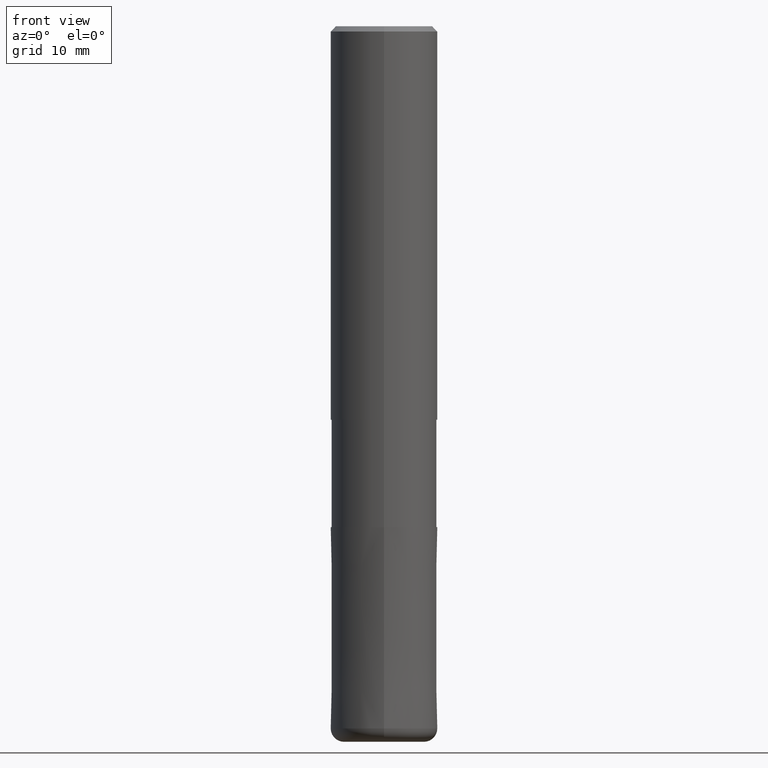
[diagram: clean part render]
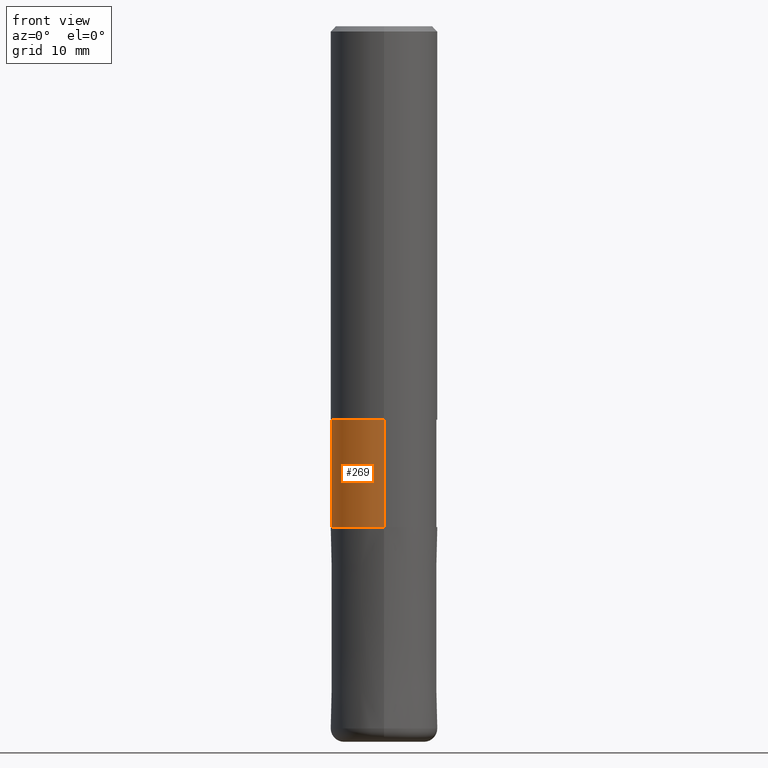
[diagram: same view with one face highlighted and labeled with its STEP entity id]
A machine part, front view. The second image highlights one B-rep face of the part: STEP entity #269.
In plain terms, the highlighted cylindrical surface (partial cylindrical patch) has radius 5.8999 mm, axis along (-0, -0, 1).
Its self-contained STEP definition (entity closure, byte-faithful):
#123=VERTEX_POINT('',#311);
#139=VERTEX_POINT('',#329);
#145=EDGE_CURVE('',#147,#139,#336,.T.);
#147=VERTEX_POINT('',#338);
#149=EDGE_CURVE('',#123,#147,#340,.T.);
#185=EDGE_CURVE('',#195,#139,#385,.T.);
#195=VERTEX_POINT('',#395);
#227=EDGE_CURVE('',#195,#123,#433,.T.);
#269=ADVANCED_FACE('',(#476),#477,.T.);
#311=CARTESIAN_POINT('',(7.22511625723433E-016,-5.89995,-44.0));
#329=CARTESIAN_POINT('',(0.0,5.89995,-56.0));
#336=LINE('',#545,#546);
#338=CARTESIAN_POINT('',(0.0,5.89995,-44.0));
#340=CIRCLE('',#551,5.89995);
#385=CIRCLE('',#606,5.89995);
#395=CARTESIAN_POINT('',(7.22511625723433E-016,-5.89995,-56.0));
#433=LINE('',#666,#667);
#476=FACE_OUTER_BOUND('',#723,.T.);
#477=CYLINDRICAL_SURFACE('',#724,5.89995);
#545=CARTESIAN_POINT('',(-7.22511625723433E-016,5.89995,-50.0));
#546=VECTOR('',#796,1.0);
#551=AXIS2_PLACEMENT_3D('',#797,#798,#799);
#606=AXIS2_PLACEMENT_3D('',#870,#871,#872);
#666=CARTESIAN_POINT('',(7.22511625723433E-016,-5.89995,-50.0));
#667=VECTOR('',#937,1.0);
#723=EDGE_LOOP('',(#970,#971,#972,#973));
#724=AXIS2_PLACEMENT_3D('',#974,#975,#976);
#796=DIRECTION('',(0.0,0.0,-1.0));
#797=CARTESIAN_POINT('',(0.0,0.0,-44.0));
#798=DIRECTION('',(0.0,0.0,-1.0));
#799=DIRECTION('',(0.0,1.0,0.0));
#870=CARTESIAN_POINT('',(0.0,0.0,-56.0));
#871=DIRECTION('',(0.0,0.0,-1.0));
#872=DIRECTION('',(0.0,1.0,0.0));
#937=DIRECTION('',(-0.0,-0.0,1.0));
#970=ORIENTED_EDGE('',*,*,#145,.T.);
#971=ORIENTED_EDGE('',*,*,#185,.F.);
#972=ORIENTED_EDGE('',*,*,#227,.T.);
#973=ORIENTED_EDGE('',*,*,#149,.T.);
#974=CARTESIAN_POINT('',(0.0,0.0,-50.0));
#975=DIRECTION('',(-0.0,-0.0,1.0));
#976=DIRECTION('',(0.0,1.0,0.0));